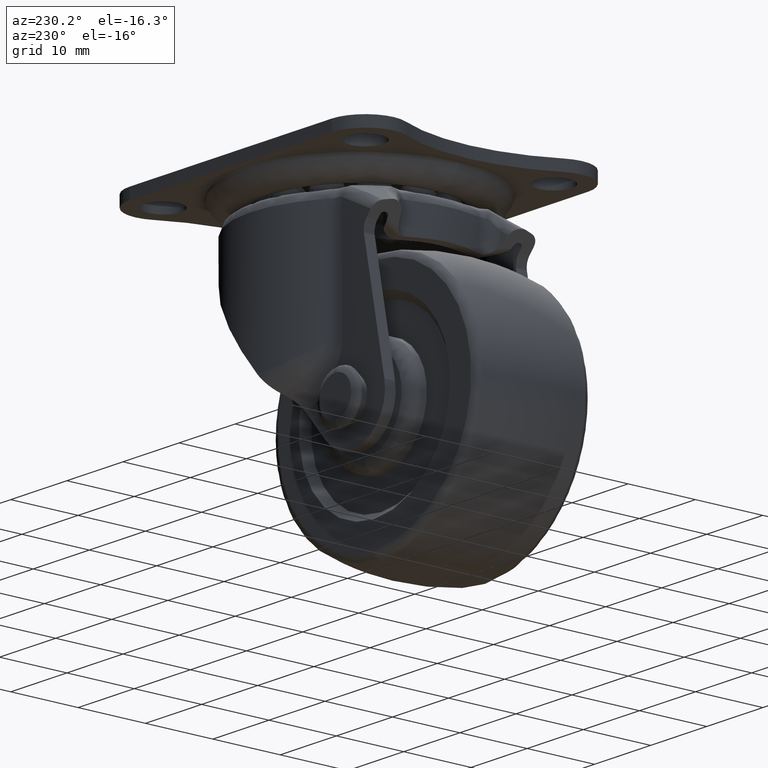
[diagram: clean part render]
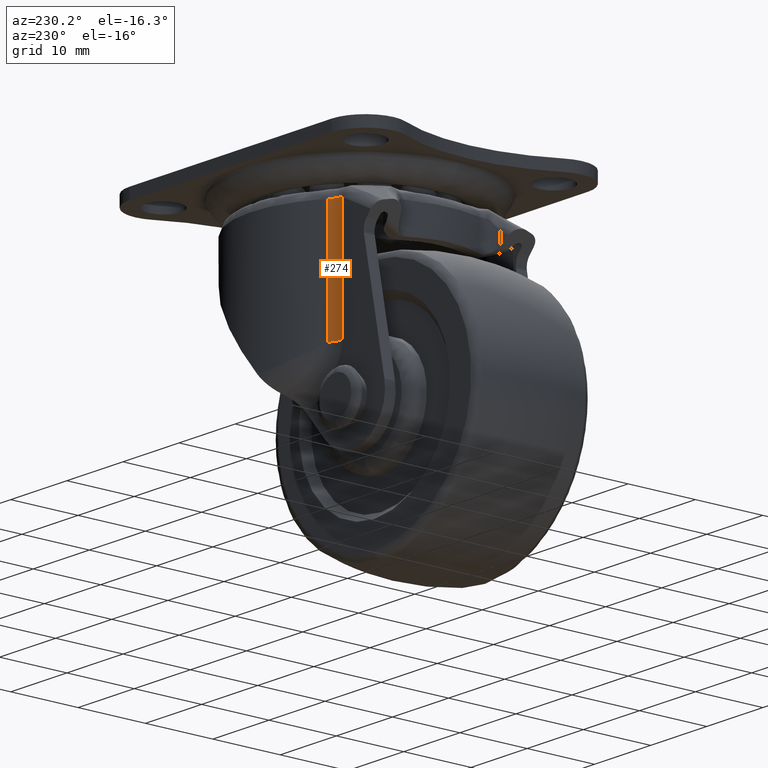
[diagram: same view with one face highlighted and labeled with its STEP entity id]
A machine part, auxiliary view. The second image highlights one B-rep face of the part: STEP entity #274.
In plain terms, the highlighted cylindrical surface (edge-blend (fillet) strip) has radius 3 mm, axis along (-0, -0, -1).
Its self-contained STEP definition (entity closure, byte-faithful):
#274=ADVANCED_FACE('',(#987),#986,.F.);
#986=CYLINDRICAL_SURFACE('',#3709,3.00000000000E+00);
#987=FACE_OUTER_BOUND('',#3710,.T.);
#3706=CARTESIAN_POINT('',(-1.15321316503E+01,1.50999980000E+01,-1.00500000200E+03));
#3707=DIRECTION('',(-0.00000000000E+00,-0.00000000000E+00,-1.00000000000E+00));
#3708=DIRECTION('',(-1.00000000000E+00,-0.00000000000E+00,-0.00000000000E+00));
#3709=AXIS2_PLACEMENT_3D('',#3706,#3707,#3708);
#3710=EDGE_LOOP('',(#5951,#5952,#5953,#5954,#5955));
#5951=ORIENTED_EDGE('',*,*,#7050,.T.);
#5952=ORIENTED_EDGE('',*,*,#6865,.T.);
#5953=ORIENTED_EDGE('',*,*,#7025,.F.);
#5954=ORIENTED_EDGE('',*,*,#7049,.T.);
#5955=ORIENTED_EDGE('',*,*,#6868,.F.);
#6865=EDGE_CURVE('',#7581,#7574,#7582,.T.);
#6868=EDGE_CURVE('',#7594,#7601,#7602,.T.);
#7025=EDGE_CURVE('',#7664,#7574,#8660,.T.);
#7049=EDGE_CURVE('',#7664,#7601,#8812,.T.);
#7050=EDGE_CURVE('',#7594,#7581,#8818,.T.);
#7574=VERTEX_POINT('',#11509);
#7581=VERTEX_POINT('',#11514);
#7582=CIRCLE('',#11518,3.00000000000E+00);
#7594=VERTEX_POINT('',#11529);
#7601=VERTEX_POINT('',#11534);
#7602=LINE('',#11535,#11536);
#7664=VERTEX_POINT('',#11600);
#8660=LINE('',#12568,#12569);
#8812=CIRCLE('',#12693,3.00000000000E+00);
#8818=(BOUNDED_CURVE() B_SPLINE_CURVE(3,(#12694,#12695,#12696,#12697),.UNSPECIFIED.,.F.,.F.) B_SPLINE_CURVE_WITH_KNOTS((4,4),(0.00000000000E+00,1.07185402992E-04),.UNSPECIFIED.) CURVE() GEOMETRIC_REPRESENTATION_ITEM() RATIONAL_B_SPLINE_CURVE((1.00000000000E+00,1.00000000000E+00,1.00000000000E+00,1.00000000000E+00)) REPRESENTATION_ITEM('') );
#11509=CARTESIAN_POINT('',(-9.71126875815E+00,1.27157877895E+01,-6.50000200000E+00));
#11514=CARTESIAN_POINT('',(-1.14428582700E+01,1.21013265836E+01,-6.50000200001E+00));
#11515=CARTESIAN_POINT('',(-1.15321316503E+01,1.50999980000E+01,-6.50000200000E+00));
#11516=DIRECTION('',(-0.00000000000E+00,0.00000000000E+00,1.00000000000E+00));
#11517=DIRECTION('',(-1.00000000000E+00,-0.00000000000E+00,-0.00000000000E+00));
#11518=AXIS2_PLACEMENT_3D('',#11515,#11516,#11517);
#11529=CARTESIAN_POINT('',(-1.15321316503E+01,1.20999980000E+01,-6.56112666717E+00));
#11534=CARTESIAN_POINT('',(-1.15321316503E+01,1.20999980000E+01,-2.35341152105E+01));
#11535=CARTESIAN_POINT('',(-1.15321316503E+01,1.20999980000E+01,-6.56112666717E+00));
#11536=VECTOR('',#11537,1.69729885433E+01);
#11537=DIRECTION('',(0.00000000000E+00,0.00000000000E+00,-1.00000000000E+00));
#11600=CARTESIAN_POINT('',(-9.71126875815E+00,1.27157877895E+01,-2.35341152105E+01));
#12568=CARTESIAN_POINT('',(-9.71126875815E+00,1.27157877895E+01,-2.35341152105E+01));
#12569=VECTOR('',#12570,1.70341132105E+01);
#12570=DIRECTION('',(0.00000000000E+00,0.00000000000E+00,1.00000000000E+00));
#12690=CARTESIAN_POINT('',(-1.15321316503E+01,1.50999980000E+01,-2.35341152105E+01));
#12691=DIRECTION('',(-3.91105780551E-16,1.15648231732E-15,-1.00000000000E+00));
#12692=DIRECTION('',(-0.00000000000E+00,-1.00000000000E+00,-1.15648231732E-15));
#12693=AXIS2_PLACEMENT_3D('',#12690,#12691,#12692);
#12694=CARTESIAN_POINT('',(-1.15321316503E+01,1.20999980000E+01,-6.56112666717E+00));
#12695=CARTESIAN_POINT('',(-1.15024678722E+01,1.20999980000E+01,-6.54047661978E+00));
#12696=CARTESIAN_POINT('',(-1.14727116128E+01,1.21004378204E+01,-6.52009830224E+00));
#12697=CARTESIAN_POINT('',(-1.14428582700E+01,1.21013265836E+01,-6.50000200001E+00));